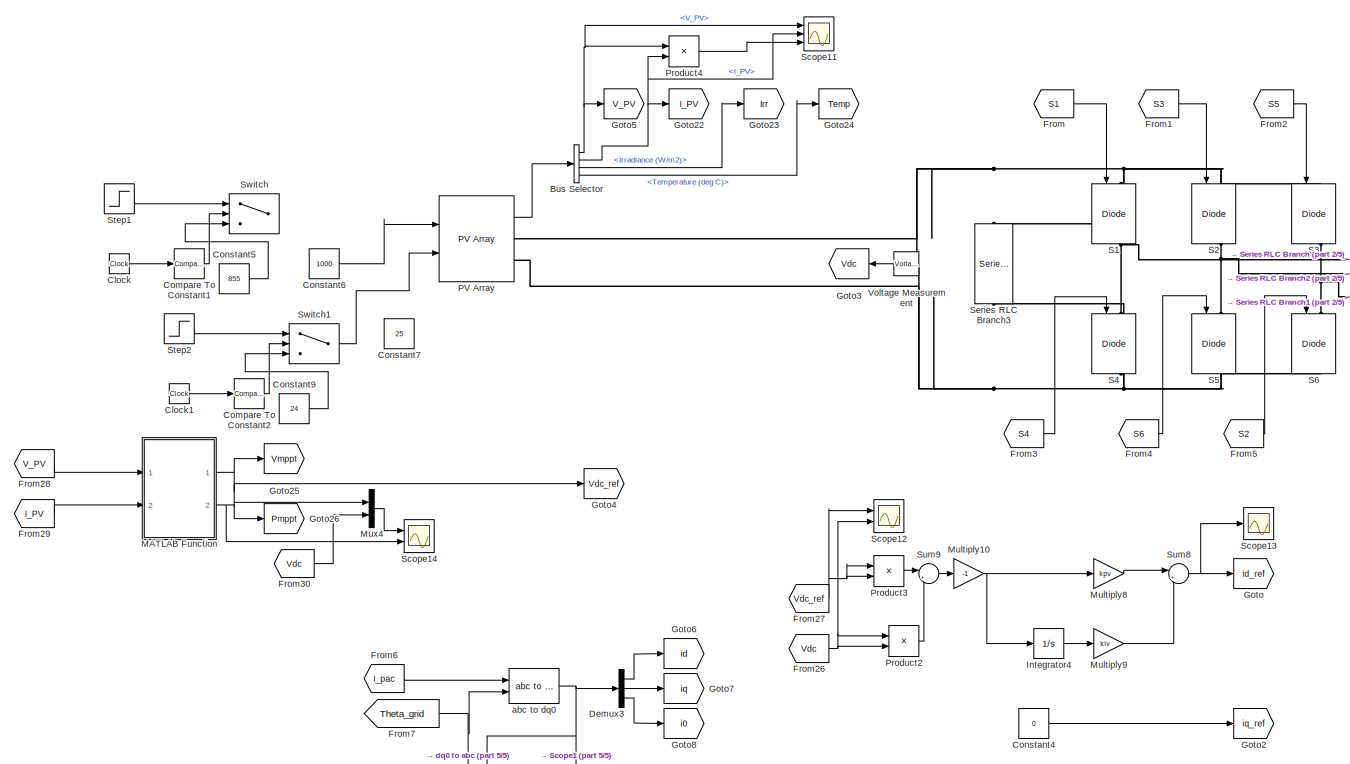
[diagram: root canvas - part 1/5, middle left region]
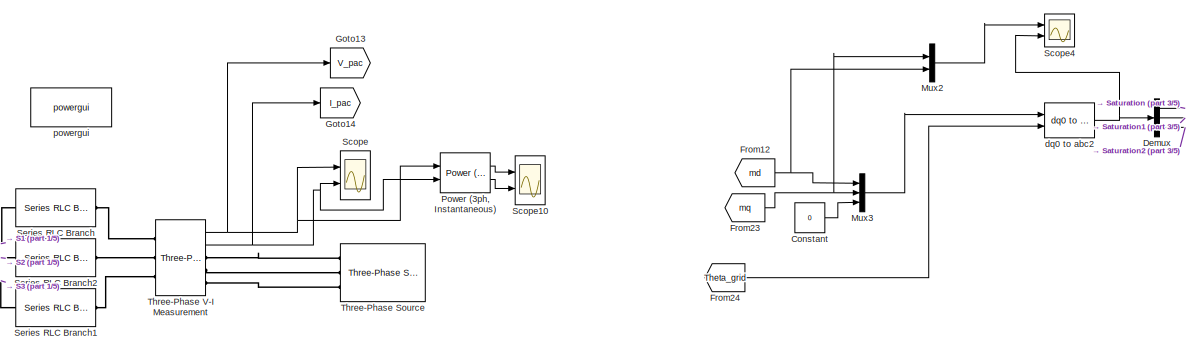
[diagram: root canvas - part 2/5, top center region]
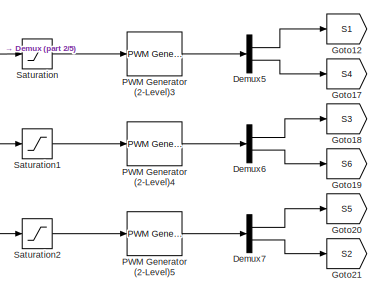
[diagram: root canvas - part 3/5, top right region]
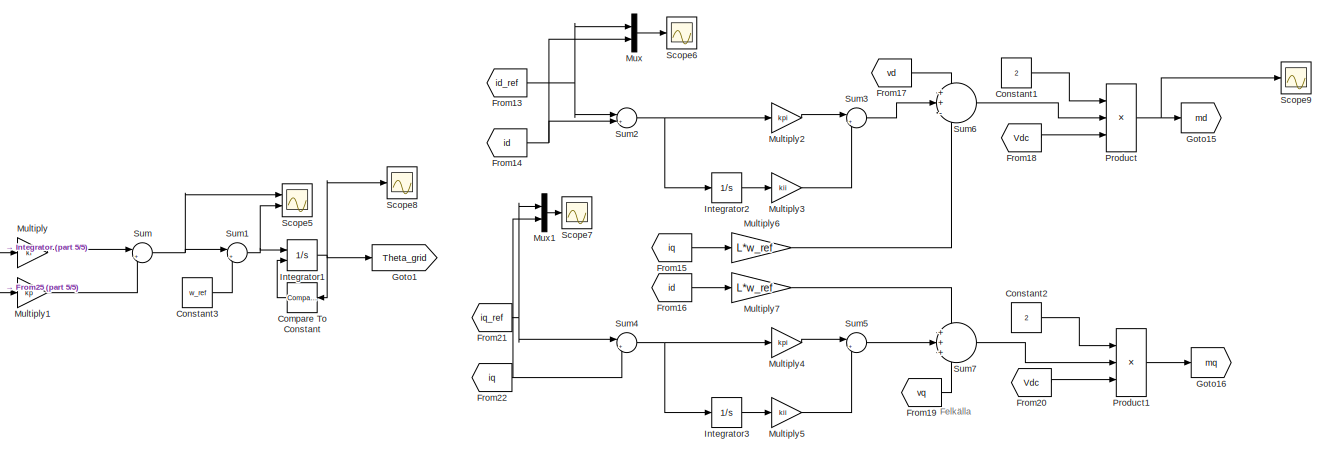
[diagram: root canvas - part 4/5, bottom center region]
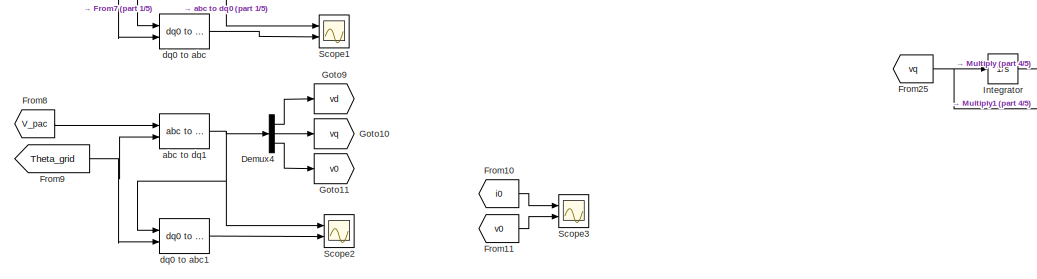
[diagram: root canvas - part 5/5, bottom left region]
MODEL slx_63ef70ae8375
KIND model
CONFIG AbsTol = auto
CONFIG EnableMultiTasking = off
CONFIG FixedStep = auto
CONFIG MaxStep = auto
CONFIG MinStep = auto
CONFIG RelTol = 1e-3
CONFIG SampleTimeConstraint = Unconstrained
CONFIG SolverName = ode23tb
CONFIG StartTime = 0.0
CONFIG StopTime = 3
BLOCK [BusSelector] Bus Selector
  OutputSignals = V_PV,I_PV,Irradiance (W/m2),Temperature (deg C)
  Ports = [1, 4]
BLOCK [Clock] Clock
BLOCK [Clock] Clock1
BLOCK [Reference] Compare To Constant  REF=simulink/Logic and Bit
Operations/Compare
To Constant
  NameLocation = top
  Ports = [1, 1]
  SourceBlock = simulink/Logic and Bit\nOperations/Compare\nTo Constant
  SourceProductBaseCode = SL
  SourceType = Compare To Constant
BLOCK [Reference] Compare To Constant1  REF=simulink/Logic and Bit
Operations/Compare
To Constant
  Ports = [1, 1]
  SourceBlock = simulink/Logic and Bit\nOperations/Compare\nTo Constant
  SourceProductBaseCode = SL
  SourceType = Compare To Constant
BLOCK [Reference] Compare To Constant2  REF=simulink/Logic and Bit
Operations/Compare
To Constant
  Ports = [1, 1]
  SourceBlock = simulink/Logic and Bit\nOperations/Compare\nTo Constant
  SourceProductBaseCode = SL
  SourceType = Compare To Constant
BLOCK [Constant] Constant
  Value = 0
BLOCK [Constant] Constant1
  Value = 2
BLOCK [Constant] Constant2
  Value = 2
BLOCK [Constant] Constant3
  Value = w_ref
BLOCK [Constant] Constant4
  Value = 0
BLOCK [Constant] Constant5
  Value = 855
BLOCK [Constant] Constant6
  Value = 1000
BLOCK [Constant] Constant7
  Value = 25
BLOCK [Constant] Constant9
  Value = 24
BLOCK [Demux] Demux
  Outputs = 3
  Ports = [1, 3]
BLOCK [Demux] Demux3
  Outputs = 3
  Ports = [1, 3]
BLOCK [Demux] Demux4
  Outputs = 3
  Ports = [1, 3]
BLOCK [Demux] Demux5
  Outputs = 2
  Ports = [1, 2]
BLOCK [Demux] Demux6
  Outputs = 2
  Ports = [1, 2]
BLOCK [Demux] Demux7
  Outputs = 2
  Ports = [1, 2]
BLOCK [From] From
  GotoTag = S1
BLOCK [From] From1
  GotoTag = S3
BLOCK [From] From10
  GotoTag = i0
BLOCK [From] From11
  GotoTag = v0
BLOCK [From] From12
  GotoTag = md
BLOCK [From] From13
  GotoTag = id_ref
BLOCK [From] From14
  GotoTag = id
BLOCK [From] From15
  GotoTag = iq
BLOCK [From] From16
  GotoTag = id
BLOCK [From] From17
  GotoTag = vd
BLOCK [From] From18
  GotoTag = Vdc
BLOCK [From] From19
  GotoTag = vq
BLOCK [From] From2
  GotoTag = S5
BLOCK [From] From20
  GotoTag = Vdc
BLOCK [From] From21
  GotoTag = iq_ref
BLOCK [From] From22
  GotoTag = iq
BLOCK [From] From23
  GotoTag = mq
BLOCK [From] From24
  GotoTag = Theta_grid
BLOCK [From] From25
  GotoTag = vq
BLOCK [From] From26
  GotoTag = Vdc
BLOCK [From] From27
  GotoTag = Vdc_ref
BLOCK [From] From28
  GotoTag = V_PV
BLOCK [From] From29
  GotoTag = I_PV
BLOCK [From] From3
  GotoTag = S4
BLOCK [From] From30
  GotoTag = Vdc
BLOCK [From] From4
  GotoTag = S6
BLOCK [From] From5
  GotoTag = S2
BLOCK [From] From6
  GotoTag = I_pac
BLOCK [From] From7
  GotoTag = Theta_grid
BLOCK [From] From8
  GotoTag = V_pac
BLOCK [From] From9
  GotoTag = Theta_grid
BLOCK [Goto] Goto
  GotoTag = id_ref
BLOCK [Goto] Goto1
  GotoTag = Theta_grid
BLOCK [Goto] Goto10
  GotoTag = vq
BLOCK [Goto] Goto11
  GotoTag = v0
BLOCK [Goto] Goto12
  GotoTag = S1
BLOCK [Goto] Goto13
  GotoTag = V_pac
BLOCK [Goto] Goto14
  GotoTag = I_pac
BLOCK [Goto] Goto15
  GotoTag = md
BLOCK [Goto] Goto16
  GotoTag = mq
BLOCK [Goto] Goto17
  GotoTag = S4
BLOCK [Goto] Goto18
  GotoTag = S3
BLOCK [Goto] Goto19
  GotoTag = S6
BLOCK [Goto] Goto2
  GotoTag = iq_ref
BLOCK [Goto] Goto20
  GotoTag = S5
BLOCK [Goto] Goto21
  GotoTag = S2
BLOCK [Goto] Goto22
  GotoTag = I_PV
BLOCK [Goto] Goto23
  GotoTag = Irr
BLOCK [Goto] Goto24
  GotoTag = Temp
BLOCK [Goto] Goto25
  GotoTag = Vmppt
BLOCK [Goto] Goto26
  GotoTag = Pmppt
BLOCK [Goto] Goto3
  GotoTag = Vdc
  NameLocation = top
BLOCK [Goto] Goto4
  GotoTag = Vdc_ref
BLOCK [Goto] Goto5
  GotoTag = V_PV
BLOCK [Goto] Goto6
  GotoTag = id
BLOCK [Goto] Goto7
  GotoTag = iq
BLOCK [Goto] Goto8
  GotoTag = i0
BLOCK [Goto] Goto9
  GotoTag = vd
BLOCK [Integrator] Integrator
  Ports = [1, 1]
BLOCK [Integrator] Integrator1
  ExternalReset = rising
  Ports = [2, 1]
BLOCK [Integrator] Integrator2
  Ports = [1, 1]
BLOCK [Integrator] Integrator3
  Ports = [1, 1]
BLOCK [Integrator] Integrator4
  Ports = [1, 1]
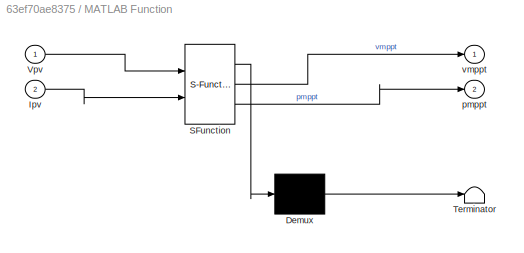
BLOCK [SubSystem] MATLAB Function
  ErrorFcn = Stateflow.Translate.translate
  PermitHierarchicalResolution = ExplicitOnly
  Ports = [2, 2]
  RequestExecContextInheritance = off
  SFBlockType = MATLAB Function
  TreatAsAtomicUnit = on
BLOCK [Demux] MATLAB Function/ Demux 
  Outputs = 1
  Ports = [1, 1]
BLOCK [S-Function] MATLAB Function/ SFunction 
  EnableBusSupport = on
  FunctionName = sf_sfun
  PortCounts = [2 3]
  Ports = [2, 3]
  SFcnIsStateOwnerBlock = off
  SFunctionDeploymentMode = off
  Tag = Stateflow S-Function 2
BLOCK [Terminator] MATLAB Function/ Terminator 
BLOCK [Inport] MATLAB Function/Ipv
  Port = 2
BLOCK [Inport] MATLAB Function/Vpv
BLOCK [Outport] MATLAB Function/pmppt
  Port = 2
BLOCK [Outport] MATLAB Function/vmppt
BLOCK [Gain] Multiply
  Gain = ki
BLOCK [Gain] Multiply1
  Gain = kp
BLOCK [Gain] Multiply10
  Gain = -1
BLOCK [Gain] Multiply2
  Gain = kpi
BLOCK [Gain] Multiply3
  Gain = kii
BLOCK [Gain] Multiply4
  Gain = kpi
BLOCK [Gain] Multiply5
  Gain = kii
BLOCK [Gain] Multiply6
  Gain = L*w_ref
BLOCK [Gain] Multiply7
  Gain = L*w_ref
BLOCK [Gain] Multiply8
  Gain = kpv
BLOCK [Gain] Multiply9
  Gain = kiv
BLOCK [Mux] Mux
  DisplayOption = bar
  Inputs = 2
  Ports = [2, 1]
BLOCK [Mux] Mux1
  DisplayOption = bar
  Inputs = 2
  Ports = [2, 1]
BLOCK [Mux] Mux2
  DisplayOption = bar
  Inputs = 2
  Ports = [2, 1]
BLOCK [Mux] Mux3
  DisplayOption = bar
  Inputs = 3
  Ports = [3, 1]
BLOCK [Mux] Mux4
  DisplayOption = bar
  Inputs = 2
  Ports = [2, 1]
BLOCK [Reference] PV Array  REF=spsPVArrayLib/PV Array
  Ports = [2, 1, 0, 0, 0, 0, 2]
  SourceBlock = spsPVArrayLib/PV Array
  SourceProductBaseCode = PS
  SourceType = PV array
BLOCK [Reference] PWM Generator (2-Level)3  REF=spsPWMGenerator2LevelLib/PWM Generator
(2-Level)
  Ports = [1, 1]
  SourceBlock = spsPWMGenerator2LevelLib/PWM Generator\n(2-Level)
  SourceProductBaseCode = PS
  SourceType = PWM Generator (2-Level)
BLOCK [Reference] PWM Generator (2-Level)4  REF=spsPWMGenerator2LevelLib/PWM Generator
(2-Level)
  Ports = [1, 1]
  SourceBlock = spsPWMGenerator2LevelLib/PWM Generator\n(2-Level)
  SourceProductBaseCode = PS
  SourceType = PWM Generator (2-Level)
BLOCK [Reference] PWM Generator (2-Level)5  REF=spsPWMGenerator2LevelLib/PWM Generator
(2-Level)
  Ports = [1, 1]
  SourceBlock = spsPWMGenerator2LevelLib/PWM Generator\n(2-Level)
  SourceProductBaseCode = PS
  SourceType = PWM Generator (2-Level)
BLOCK [Reference] Power (3ph, Instantaneous)  REF=spsPower3phInstantaneousLib/Power
(3ph, Instantaneous)
  Ports = [2, 2]
  SourceBlock = spsPower3phInstantaneousLib/Power\n(3ph, Instantaneous)
  SourceProductBaseCode = PS
  SourceType = Power (3ph, Instantaneous)
BLOCK [Product] Product
  Inputs = **/
  Ports = [3, 1]
BLOCK [Product] Product1
  Inputs = **/
  Ports = [3, 1]
BLOCK [Product] Product2
  Ports = [2, 1]
BLOCK [Product] Product3
  Ports = [2, 1]
BLOCK [Product] Product4
  Ports = [2, 1]
BLOCK [Reference] S1  REF=spsIGBTDiodeLib/IGBT//Diode
  NameLocation = left
  Ports = [1, 1, 0, 0, 0, 1, 1]
  SourceBlock = spsIGBTDiodeLib/IGBT//Diode
  SourceProductBaseCode = PS
  SourceType = IGBT/Diode
BLOCK [Reference] S2  REF=spsIGBTDiodeLib/IGBT//Diode
  NameLocation = left
  Ports = [1, 1, 0, 0, 0, 1, 1]
  SourceBlock = spsIGBTDiodeLib/IGBT//Diode
  SourceProductBaseCode = PS
  SourceType = IGBT/Diode
BLOCK [Reference] S3  REF=spsIGBTDiodeLib/IGBT//Diode
  NameLocation = left
  Ports = [1, 1, 0, 0, 0, 1, 1]
  SourceBlock = spsIGBTDiodeLib/IGBT//Diode
  SourceProductBaseCode = PS
  SourceType = IGBT/Diode
BLOCK [Reference] S4  REF=spsIGBTDiodeLib/IGBT//Diode
  NameLocation = left
  Ports = [1, 1, 0, 0, 0, 1, 1]
  SourceBlock = spsIGBTDiodeLib/IGBT//Diode
  SourceProductBaseCode = PS
  SourceType = IGBT/Diode
BLOCK [Reference] S5  REF=spsIGBTDiodeLib/IGBT//Diode
  NameLocation = left
  Ports = [1, 1, 0, 0, 0, 1, 1]
  SourceBlock = spsIGBTDiodeLib/IGBT//Diode
  SourceProductBaseCode = PS
  SourceType = IGBT/Diode
BLOCK [Reference] S6  REF=spsIGBTDiodeLib/IGBT//Diode
  NameLocation = left
  Ports = [1, 1, 0, 0, 0, 1, 1]
  SourceBlock = spsIGBTDiodeLib/IGBT//Diode
  SourceProductBaseCode = PS
  SourceType = IGBT/Diode
BLOCK [Saturate] Saturation
  LowerLimit = -1
  UpperLimit = 1
BLOCK [Saturate] Saturation1
  LowerLimit = -1
  UpperLimit = 1
BLOCK [Saturate] Saturation2
  LowerLimit = -1
  UpperLimit = 1
BLOCK [Scope] Scope
  Floating = off
  NumInputPorts = 2
  Ports = [2]
  ScopeSpecificationString = Simulink.scopes.TimeScopeBlockCfg('CurrentConfiguration', extmgr.ConfigurationSet(extmgr.Configuration('Core','General UI',true),extmgr.Configuration('Core','Source UI',true),extmgr.Configuration('Sources','WiredSimulink',true),extmgr.Configuration('Visuals','Time Domain',true,'SerializedDisplays',{struct('MinYLimReal','-224.55185','MaxYLimReal','224.55075','YLabelReal','','MinYLimMag',' 0.00000',...<+2297ch>
BLOCK [Scope] Scope1
  Floating = off
  NumInputPorts = 2
  Ports = [2]
  ScopeSpecificationString = Simulink.scopes.TimeScopeBlockCfg('CurrentConfiguration', extmgr.ConfigurationSet(extmgr.Configuration('Core','General UI',true),extmgr.Configuration('Core','Source UI',true),extmgr.Configuration('Sources','WiredSimulink',true,'DataLoggingVariableName','ScopeData1'),extmgr.Configuration('Visuals','Time Domain',true,'SerializedDisplays',{struct('MinYLimReal','67.10146','MaxYLimReal','72.52326','YLa...<+2158ch>
BLOCK [Scope] Scope10
  Floating = off
  NumInputPorts = 2
  Ports = [2]
  ScopeSpecificationString = Simulink.scopes.TimeScopeBlockCfg('CurrentConfiguration', extmgr.ConfigurationSet(extmgr.Configuration('Core','General UI',true),extmgr.Configuration('Core','Source UI',true),extmgr.Configuration('Sources','WiredSimulink',true,'DataLoggingVariableName','ScopeData5'),extmgr.Configuration('Visuals','Time Domain',true,'SerializedDisplays',{struct('MinYLimReal','-9922.72262','MaxYLimReal','6995.53595'...<+2139ch>
BLOCK [Scope] Scope11
  Floating = off
  NumInputPorts = 3
  Ports = [3]
  ScopeSpecificationString = Simulink.scopes.TimeScopeBlockCfg('CurrentConfiguration', extmgr.ConfigurationSet(extmgr.Configuration('Core','General UI',true),extmgr.Configuration('Core','Source UI',true),extmgr.Configuration('Sources','WiredSimulink',true,'DataLoggingVariableName','ScopeData1'),extmgr.Configuration('Visuals','Time Domain',true,'SerializedDisplays',{struct('MinYLimReal','393.57508','MaxYLimReal','457.8425','YL...<+2809ch>
BLOCK [Scope] Scope12
  Floating = off
  NumInputPorts = 2
  Ports = [2]
  ScopeSpecificationString = Simulink.scopes.TimeScopeBlockCfg('CurrentConfiguration', extmgr.ConfigurationSet(extmgr.Configuration('Core','General UI',true),extmgr.Configuration('Core','Source UI',true),extmgr.Configuration('Sources','WiredSimulink',true,'DataLoggingVariableName','ScopeData2'),extmgr.Configuration('Visuals','Time Domain',true,'SerializedDisplays',{struct('MinYLimReal','399.89198','MaxYLimReal','400.10215','Y...<+1471ch>
BLOCK [Scope] Scope13
  Floating = off
  NumInputPorts = 1
  Ports = [1]
  ScopeSpecificationString = Simulink.scopes.TimeScopeBlockCfg('CurrentConfiguration', extmgr.ConfigurationSet(extmgr.Configuration('Core','General UI',true),extmgr.Configuration('Core','Source UI',true),extmgr.Configuration('Sources','WiredSimulink',true,'DataLoggingVariableName','ScopeData3'),extmgr.Configuration('Visuals','Time Domain',true,'SerializedDisplays',{struct('MinYLimReal','-2485.51819','MaxYLimReal','276.16869',...<+1412ch>
BLOCK [Scope] Scope14
  Floating = off
  NumInputPorts = 2
  Ports = [2]
  ScopeSpecificationString = Simulink.scopes.TimeScopeBlockCfg('CurrentConfiguration', extmgr.ConfigurationSet(extmgr.Configuration('Core','General UI',true),extmgr.Configuration('Core','Source UI',true),extmgr.Configuration('Sources','WiredSimulink',true,'DataLoggingVariableName','ScopeData2'),extmgr.Configuration('Visuals','Time Domain',true,'SerializedDisplays',{struct('MinYLimReal','11.57259','MaxYLimReal','3895.86492','Y...<+1494ch>
BLOCK [Scope] Scope2
  Floating = off
  NumInputPorts = 2
  Ports = [2]
  ScopeSpecificationString = Simulink.scopes.TimeScopeBlockCfg('CurrentConfiguration', extmgr.ConfigurationSet(extmgr.Configuration('Core','General UI',true),extmgr.Configuration('Core','Source UI',true),extmgr.Configuration('Sources','WiredSimulink',true,'DataLoggingVariableName','ScopeData2'),extmgr.Configuration('Visuals','Time Domain',true,'SerializedDisplays',{struct('MinYLimReal','162.63413','MaxYLimReal','203.13924','Y...<+1482ch>
BLOCK [Scope] Scope3
  Floating = off
  NumInputPorts = 2
  Ports = [2]
  ScopeSpecificationString = Simulink.scopes.TimeScopeBlockCfg('CurrentConfiguration', extmgr.ConfigurationSet(extmgr.Configuration('Core','General UI',true),extmgr.Configuration('Core','Source UI',true),extmgr.Configuration('Sources','WiredSimulink',true,'DataLoggingVariableName','ScopeData3'),extmgr.Configuration('Visuals','Time Domain',true,'SerializedDisplays',{struct('MinYLimReal','-0.00000001','MaxYLimReal','0.000000023...<+1553ch>
BLOCK [Scope] Scope4
  Floating = off
  NumInputPorts = 2
  Ports = [2]
  ScopeSpecificationString = Simulink.scopes.TimeScopeBlockCfg('CurrentConfiguration', extmgr.ConfigurationSet(extmgr.Configuration('Core','General UI',true),extmgr.Configuration('Core','Source UI',true),extmgr.Configuration('Sources','WiredSimulink',true,'DataLoggingVariableName','ScopeData1'),extmgr.Configuration('Visuals','Time Domain',true,'SerializedDisplays',{struct('MinYLimReal','-0.13081','MaxYLimReal','1.17714','YLab...<+2015ch>
BLOCK [Scope] Scope5
  Floating = off
  NumInputPorts = 2
  Ports = [2]
  ScopeSpecificationString = Simulink.scopes.TimeScopeBlockCfg('CurrentConfiguration', extmgr.ConfigurationSet(extmgr.Configuration('Core','General UI',true),extmgr.Configuration('Core','Source UI',true),extmgr.Configuration('Sources','WiredSimulink',true,'DataLoggingVariableName','ScopeData2'),extmgr.Configuration('Visuals','Time Domain',true,'SerializedDisplays',{struct('MinYLimReal','570.57149','MaxYLimReal','708.94564','Y...<+1402ch>
BLOCK [Scope] Scope6
  Floating = off
  NumInputPorts = 1
  Ports = [1]
  ScopeSpecificationString = Simulink.scopes.TimeScopeBlockCfg('CurrentConfiguration', extmgr.ConfigurationSet(extmgr.Configuration('Core','General UI',true),extmgr.Configuration('Core','Source UI',true),extmgr.Configuration('Sources','WiredSimulink',true,'DataLoggingVariableName','ScopeData6'),extmgr.Configuration('Visuals','Time Domain',true,'SerializedDisplays',{struct('MinYLimReal','-3.84593','MaxYLimReal','59.18295','YLa...<+1425ch>
BLOCK [Scope] Scope7
  Floating = off
  NumInputPorts = 1
  Ports = [1]
  ScopeSpecificationString = Simulink.scopes.TimeScopeBlockCfg('CurrentConfiguration', extmgr.ConfigurationSet(extmgr.Configuration('Core','General UI',true),extmgr.Configuration('Core','Source UI',true),extmgr.Configuration('Sources','WiredSimulink',true,'DataLoggingVariableName','ScopeData7'),extmgr.Configuration('Visuals','Time Domain',true,'SerializedDisplays',{struct('MinYLimReal','-1.03055','MaxYLimReal','1.13192','YLab...<+1398ch>
BLOCK [Scope] Scope8
  Floating = off
  NumInputPorts = 1
  Ports = [1]
  ScopeSpecificationString = Simulink.scopes.TimeScopeBlockCfg('CurrentConfiguration', extmgr.ConfigurationSet(extmgr.Configuration('Core','General UI',true),extmgr.Configuration('Core','Source UI',true),extmgr.Configuration('Sources','WiredSimulink',true,'DataLoggingVariableName','ScopeData3'),extmgr.Configuration('Visuals','Time Domain',true,'SerializedDisplays',{struct('MinYLimReal','-7.82062','MaxYLimReal','70.38562','YLa...<+1418ch>
BLOCK [Scope] Scope9
  Floating = off
  NumInputPorts = 1
  Ports = [1]
  ScopeSpecificationString = Simulink.scopes.TimeScopeBlockCfg('CurrentConfiguration', extmgr.ConfigurationSet(extmgr.Configuration('Core','General UI',true),extmgr.Configuration('Core','Source UI',true),extmgr.Configuration('Sources','WiredSimulink',true,'DataLoggingVariableName','ScopeData4'),extmgr.Configuration('Visuals','Time Domain',true,'SerializedDisplays',{struct('MinYLimReal','-2.08586','MaxYLimReal','28.31314','YLa...<+1370ch>
BLOCK [Reference] Series RLC Branch  REF=spsSeriesRLCBranchLib/Series RLC Branch
  Ports = [0, 0, 0, 0, 0, 1, 1]
  SourceBlock = spsSeriesRLCBranchLib/Series RLC Branch
  SourceProductBaseCode = PS
  SourceType = Series RLC Branch
BLOCK [Reference] Series RLC Branch1  REF=spsSeriesRLCBranchLib/Series RLC Branch
  Ports = [0, 0, 0, 0, 0, 1, 1]
  SourceBlock = spsSeriesRLCBranchLib/Series RLC Branch
  SourceProductBaseCode = PS
  SourceType = Series RLC Branch
BLOCK [Reference] Series RLC Branch2  REF=spsSeriesRLCBranchLib/Series RLC Branch
  Ports = [0, 0, 0, 0, 0, 1, 1]
  SourceBlock = spsSeriesRLCBranchLib/Series RLC Branch
  SourceProductBaseCode = PS
  SourceType = Series RLC Branch
BLOCK [Reference] Series RLC Branch3  REF=spsSeriesRLCBranchLib/Series RLC Branch
  NameLocation = left
  Ports = [0, 0, 0, 0, 0, 1, 1]
  SourceBlock = spsSeriesRLCBranchLib/Series RLC Branch
  SourceProductBaseCode = PS
  SourceType = Series RLC Branch
BLOCK [Step] Step1
  After = 1200
  Before = 1000
  SampleTime = 0
BLOCK [Step] Step2
  After = 26.5
  Before = 25
  SampleTime = 0
  Time = 1.5
BLOCK [Sum] Sum
  Inputs = |++
  Ports = [2, 1]
BLOCK [Sum] Sum1
  Inputs = |++
  Ports = [2, 1]
BLOCK [Sum] Sum2
  Inputs = |+-
  Ports = [2, 1]
BLOCK [Sum] Sum3
  Inputs = |++
  Ports = [2, 1]
BLOCK [Sum] Sum4
  Inputs = |+-
  Ports = [2, 1]
BLOCK [Sum] Sum5
  Inputs = |++
  Ports = [2, 1]
BLOCK [Sum] Sum6
  Inputs = ++-
  Ports = [3, 1]
BLOCK [Sum] Sum7
  Inputs = +++
  NameLocation = top
  Ports = [3, 1]
BLOCK [Sum] Sum8
  Inputs = |++
  Ports = [2, 1]
BLOCK [Sum] Sum9
  Inputs = |+-
  Ports = [2, 1]
BLOCK [Switch] Switch
  Criteria = u2 > Threshold
  InputSameDT = off
  SaturateOnIntegerOverflow = off
BLOCK [Switch] Switch1
  Criteria = u2 > Threshold
  InputSameDT = off
  SaturateOnIntegerOverflow = off
BLOCK [Reference] Three-Phase Source  REF=spsThreePhaseSourceLib/Three-Phase Source
  NameLocation = top
  Ports = [0, 0, 0, 0, 0, 0, 3]
  SourceBlock = spsThreePhaseSourceLib/Three-Phase Source
  SourceProductBaseCode = PS
  SourceType = Three-Phase Source
BLOCK [Reference] Three-Phase V-I Measurement  REF=spsThreePhaseVIMeasurementLib/Three-Phase
V-I Measurement
  Ports = [0, 2, 0, 0, 0, 3, 3]
  SourceBlock = spsThreePhaseVIMeasurementLib/Three-Phase\nV-I Measurement
  SourceProductBaseCode = PS
  SourceType = Three-Phase VI Measurement
BLOCK [Reference] Voltage Measurement  REF=spsVoltageMeasurementLib/Voltage Measurement
  NameLocation = top
  Ports = [0, 1, 0, 0, 0, 2]
  SourceBlock = spsVoltageMeasurementLib/Voltage Measurement
  SourceProductBaseCode = PS
  SourceType = Voltage Measurement
  UserDataPersistent = on
BLOCK [Reference] abc to dq0  REF=spsabctodq0Lib/abc to dq0
  Ports = [2, 1]
  SourceBlock = spsabctodq0Lib/abc to dq0
  SourceProductBaseCode = PS
  SourceType = abc to dq0 Transformation
BLOCK [Reference] abc to dq1  REF=spsabctodq0Lib/abc to dq0
  Ports = [2, 1]
  SourceBlock = spsabctodq0Lib/abc to dq0
  SourceProductBaseCode = PS
  SourceType = abc to dq0 Transformation
BLOCK [Reference] dq0 to abc  REF=spsdq0toabcLib/dq0 to abc
  Ports = [2, 1]
  SourceBlock = spsdq0toabcLib/dq0 to abc
  SourceProductBaseCode = PS
  SourceType = dq0 to abc Transformation
BLOCK [Reference] dq0 to abc1  REF=spsdq0toabcLib/dq0 to abc
  Ports = [2, 1]
  SourceBlock = spsdq0toabcLib/dq0 to abc
  SourceProductBaseCode = PS
  SourceType = dq0 to abc Transformation
BLOCK [Reference] dq0 to abc2  REF=spsdq0toabcLib/dq0 to abc
  Ports = [2, 1]
  SourceBlock = spsdq0toabcLib/dq0 to abc
  SourceProductBaseCode = PS
  SourceType = dq0 to abc Transformation
BLOCK [Reference] powergui  REF=spspowerguiLib/powergui
  Ports = []
  Priority = 1
  SourceBlock = spspowerguiLib/powergui
  SourceProductBaseCode = PS
  SourceType = PSB option menu block
ANNOTATION (root): Felkälla
NET Bus Selector:1 -> Goto5:1, Product4:1, Scope11:1
NET Bus Selector:2 -> Goto22:1, Product4:2, Scope11:2
LINE Bus Selector:3 -> Goto23:1
LINE Bus Selector:4 -> Goto24:1
LINE Clock1:1 -> Compare To Constant2:1
LINE Clock:1 -> Compare To Constant1:1
LINE Compare To Constant1:1 -> Switch:2
LINE Compare To Constant2:1 -> Switch1:2
LINE Compare To Constant:1 -> Integrator1:2
LINE Constant1:1 -> Product:1
LINE Constant2:1 -> Product1:1
LINE Constant3:1 -> Sum1:2
LINE Constant4:1 -> Goto2:1
LINE Constant5:1 -> Switch:3
LINE Constant6:1 -> PV Array:1
LINE Constant9:1 -> Switch1:3
LINE Constant:1 -> Mux3:3
LINE Demux3:1 -> Goto6:1
LINE Demux3:2 -> Goto7:1
LINE Demux3:3 -> Goto8:1
LINE Demux4:1 -> Goto9:1
LINE Demux4:2 -> Goto10:1
LINE Demux4:3 -> Goto11:1
LINE Demux5:1 -> Goto12:1
LINE Demux5:2 -> Goto17:1
LINE Demux6:1 -> Goto18:1
LINE Demux6:2 -> Goto19:1
LINE Demux7:1 -> Goto20:1
LINE Demux7:2 -> Goto21:1
LINE Demux:1 -> Saturation:1
LINE Demux:2 -> Saturation1:1
LINE Demux:3 -> Saturation2:1
LINE From10:1 -> Scope3:1
LINE From11:1 -> Scope3:2
NET From12:1 -> Mux2:2, Mux3:1
NET From13:1 -> Mux:1, Sum2:1
NET From14:1 -> Mux:2, Sum2:2
LINE From15:1 -> Multiply6:1
LINE From16:1 -> Multiply7:1
LINE From17:1 -> Sum6:1
LINE From18:1 -> Product:3
LINE From19:1 -> Sum7:3
LINE From1:1 -> S2:1
LINE From20:1 -> Product1:3
NET From21:1 -> Mux1:1, Sum4:1
NET From22:1 -> Mux1:2, Sum4:2
NET From23:1 -> Mux2:1, Mux3:2
LINE From24:1 -> dq0 to abc2:2
NET From25:1 -> Integrator:1, Multiply1:1
NET From26:1 -> Product2:1, Product2:2, Scope12:2
NET From27:1 -> Product3:1, Product3:2, Scope12:1
LINE From28:1 -> MATLAB Function:1
LINE From29:1 -> MATLAB Function:2
LINE From2:1 -> S3:1
LINE From30:1 -> Mux4:2
LINE From3:1 -> S4:1
LINE From4:1 -> S5:1
LINE From5:1 -> S6:1
LINE From6:1 -> abc to dq0:1
NET From7:1 -> abc to dq0:2, dq0 to abc:2
LINE From8:1 -> abc to dq1:1
NET From9:1 -> abc to dq1:2, dq0 to abc1:2
LINE From:1 -> S1:1
NET Integrator1:1 -> Compare To Constant:1, Goto1:1, Scope8:1
LINE Integrator2:1 -> Multiply3:1
LINE Integrator3:1 -> Multiply5:1
LINE Integrator4:1 -> Multiply9:1
LINE Integrator:1 -> Multiply:1
NET MATLAB Function:1 -> Goto25:1, Goto4:1, Mux4:1
NET MATLAB Function:2 -> Goto26:1, Scope14:2
NET Multiply10:1 -> Integrator4:1, Multiply8:1
LINE Multiply1:1 -> Sum:2
LINE Multiply2:1 -> Sum3:1
LINE Multiply3:1 -> Sum3:2
LINE Multiply4:1 -> Sum5:1
LINE Multiply5:1 -> Sum5:2
LINE Multiply6:1 -> Sum6:3
LINE Multiply7:1 -> Sum7:1
LINE Multiply8:1 -> Sum8:1
LINE Multiply9:1 -> Sum8:2
LINE Multiply:1 -> Sum:1
LINE Mux1:1 -> Scope7:1
LINE Mux2:1 -> Scope4:1
LINE Mux3:1 -> dq0 to abc2:1
LINE Mux4:1 -> Scope14:1
LINE Mux:1 -> Scope6:1
LINE PV Array:1 -> Bus Selector:1
LINE PWM Generator (2-Level)3:1 -> Demux5:1
LINE PWM Generator (2-Level)4:1 -> Demux6:1
LINE PWM Generator (2-Level)5:1 -> Demux7:1
LINE Power (3ph, Instantaneous):1 -> Scope10:1
LINE Power (3ph, Instantaneous):2 -> Scope10:2
LINE Product1:1 -> Goto16:1
LINE Product2:1 -> Sum9:2
LINE Product3:1 -> Sum9:1
LINE Product4:1 -> Scope11:3
NET Product:1 -> Goto15:1, Scope9:1
LINE Saturation1:1 -> PWM Generator (2-Level)4:1
LINE Saturation2:1 -> PWM Generator (2-Level)5:1
LINE Saturation:1 -> PWM Generator (2-Level)3:1
LINE Step1:1 -> Switch:1
LINE Step2:1 -> Switch1:1
NET Sum1:1 -> Integrator1:1, Scope5:2
NET Sum2:1 -> Integrator2:1, Multiply2:1
LINE Sum3:1 -> Sum6:2
NET Sum4:1 -> Integrator3:1, Multiply4:1
LINE Sum5:1 -> Sum7:2
LINE Sum6:1 -> Product:2
LINE Sum7:1 -> Product1:2
NET Sum8:1 -> Goto:1, Scope13:1
LINE Sum9:1 -> Multiply10:1
NET Sum:1 -> Scope5:1, Sum1:1
LINE Switch1:1 -> PV Array:2
NET Three-Phase V-I Measurement:1 -> Goto13:1, Power (3ph, Instantaneous):1, Scope:1
NET Three-Phase V-I Measurement:2 -> Goto14:1, Power (3ph, Instantaneous):2, Scope:2
LINE Voltage Measurement:1 -> Goto3:1
NET abc to dq0:1 -> Demux3:1, Scope1:1, dq0 to abc:1
NET abc to dq1:1 -> Demux4:1, Scope2:1, dq0 to abc1:1
LINE dq0 to abc1:1 -> Scope2:2
NET dq0 to abc2:1 -> Demux:1, Scope4:2
LINE dq0 to abc:1 -> Scope1:2
PNET net1: PV Array:RConn1 -- S1:LConn1 -- S2:LConn1 -- S3:LConn1 -- Series RLC Branch3:LConn1 -- Voltage Measurement:LConn1
PNET net2: PV Array:RConn2 -- S4:RConn1 -- S5:RConn1 -- S6:RConn1 -- Series RLC Branch3:RConn1 -- Voltage Measurement:LConn2
PNET net3: S1:RConn1 -- S4:LConn1 -- Series RLC Branch:LConn1
PNET net4: S2:RConn1 -- S5:LConn1 -- Series RLC Branch2:LConn1
PNET net5: S3:RConn1 -- S6:LConn1 -- Series RLC Branch1:LConn1
PLINE Series RLC Branch1:RConn1 -- Three-Phase V-I Measurement:LConn3
PLINE Series RLC Branch2:RConn1 -- Three-Phase V-I Measurement:LConn2
PLINE Series RLC Branch:RConn1 -- Three-Phase V-I Measurement:LConn1
PLINE Three-Phase Source:RConn1 -- Three-Phase V-I Measurement:RConn1
PLINE Three-Phase Source:RConn2 -- Three-Phase V-I Measurement:RConn2
PLINE Three-Phase Source:RConn3 -- Three-Phase V-I Measurement:RConn3
note: NET lines group one-source signal fan-out (src -> all destinations, sorted); 1:1 wires keep LINE; PNET lines group multi-terminal physical nets as a canonical sorted terminal list (undirected conserving connections); 2-terminal nets keep the pairwise PLINE form
CHART MATLAB Function states=1 transitions=1
  STATE_LABEL 'eML_blk_kernel()'
  STATE_LABEL 'SCRIPT:\nfunction [ vmppt , pmppt ] = PandO ( Vpv , Ipv )\npersistent Pold Vold vref\nif isempty ( Vold )\n    Vold = 0;\nend\nif isempty ( Pold )\n    Pold = 0;\nend\nif isempty ( vref )\n    vref = 434;\nend\ndV = 0.001;\nP = Vpv * Ipv ;\nif ( P ~= Pold )\n    if (P > Pold )\n        if ( Vpv > Vold )\n            vref = vref + dV ;\n        else\n            vref = vref - dV ;\n        end\n        if (P < Pold )\n ...<+207ch>'
CHART  states=0 transitions=0
